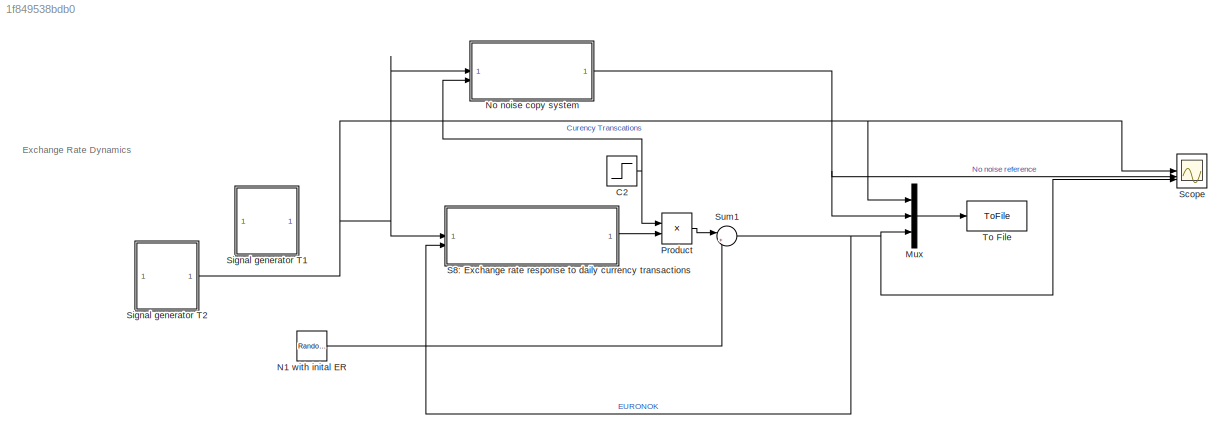
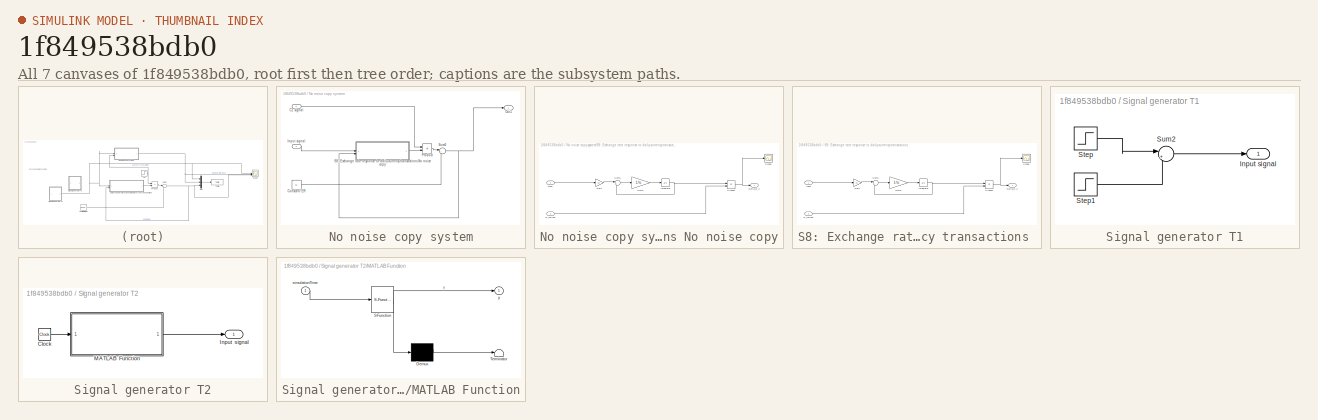
[diagram: thumbnail index - all 7 canvases of the model, root first then tree order]
MODEL slx_1f849538bdb0
KIND model
CONFIG AbsTol = auto
CONFIG EnableMultiTasking = off
CONFIG FixedStep = auto
CONFIG MaxStep = auto
CONFIG MinStep = auto
CONFIG RelTol = 1e-3
CONFIG SampleTimeConstraint = Unconstrained
CONFIG SolverName = VariableStepAuto
CONFIG StartTime = 0.0
CONFIG StopTime = 1.04
BLOCK [Step] C2
  After = 0
  Before = 1
  SampleTime = 0
  Time = 0.38
BLOCK [Mux] Mux
  DisplayOption = bar
  Inputs = 3
BLOCK [RandomNumber] N1 with inital ER
  Mean = 12
  SampleTime = 0.00142857
  Seed = 23341
  Variance = 0.00001259
BLOCK [SubSystem] No noise copy system
BLOCK [Inport] No noise copy system/C2 signal
  Port = 2
BLOCK [Constant] No noise copy system/Constant ER
  Value = 12
BLOCK [Inport] No noise copy system/Input signal
BLOCK [Outport] No noise copy system/Out1
BLOCK [Product] No noise copy system/Product
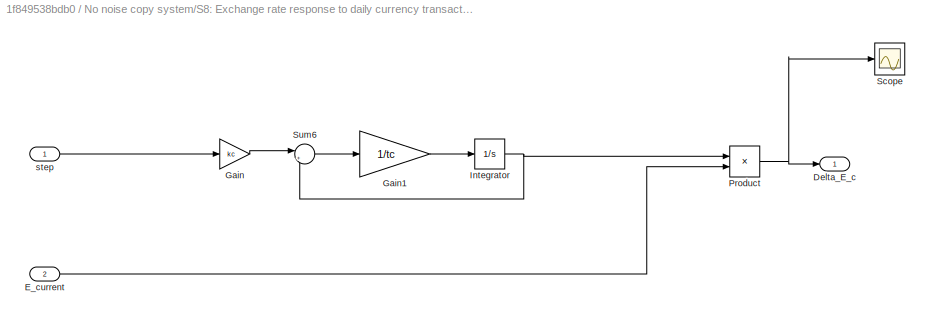
BLOCK [SubSystem] No noise copy system/S8: Exchange rate response to daily currency transactions No noise copy
BLOCK [Outport] No noise copy system/S8: Exchange rate response to daily currency transactions No noise copy/Delta_E_c
BLOCK [Inport] No noise copy system/S8: Exchange rate response to daily currency transactions No noise copy/E_current
  Port = 2
BLOCK [Gain] No noise copy system/S8: Exchange rate response to daily currency transactions No noise copy/Gain
  Gain = kc
BLOCK [Gain] No noise copy system/S8: Exchange rate response to daily currency transactions No noise copy/Gain1
  Gain = 1/tc
BLOCK [Integrator] No noise copy system/S8: Exchange rate response to daily currency transactions No noise copy/Integrator
BLOCK [Product] No noise copy system/S8: Exchange rate response to daily currency transactions No noise copy/Product
BLOCK [Scope] No noise copy system/S8: Exchange rate response to daily currency transactions No noise copy/Scope
  Floating = off
  NumInputPorts = 1
  ScopeSpecificationString = Simulink.scopes.TimeScopeBlockCfg('CurrentConfiguration', extmgr.ConfigurationSet(extmgr.Configuration('Core','General UI',true),extmgr.Configuration('Core','Source UI',true),extmgr.Configuration('Sources','WiredSimulink',true,'DataLoggingVariableName','ScopeData3'),extmgr.Configuration('Visuals','Time Domain',true,'SerializedDisplays',{struct('MinYLimReal','-0.00181','MaxYLimReal','0.01628','YLab...<+1366ch>
BLOCK [Sum] No noise copy system/S8: Exchange rate response to daily currency transactions No noise copy/Sum6
  Inputs = |+-
BLOCK [Inport] No noise copy system/S8: Exchange rate response to daily currency transactions No noise copy/step
BLOCK [Sum] No noise copy system/Sum3
  Inputs = |++
BLOCK [Product] Product
BLOCK [SubSystem] S8: Exchange rate response to daily currency transactions 
BLOCK [Outport] S8: Exchange rate response to daily currency transactions /Delta_E_c
BLOCK [Inport] S8: Exchange rate response to daily currency transactions /E_current
  Port = 2
BLOCK [Gain] S8: Exchange rate response to daily currency transactions /Gain
  Gain = kc
BLOCK [Gain] S8: Exchange rate response to daily currency transactions /Gain1
  Gain = 1/tc
BLOCK [Integrator] S8: Exchange rate response to daily currency transactions /Integrator
BLOCK [Product] S8: Exchange rate response to daily currency transactions /Product
BLOCK [Scope] S8: Exchange rate response to daily currency transactions /Scope
  Floating = off
  NumInputPorts = 1
  ScopeSpecificationString = Simulink.scopes.TimeScopeBlockCfg('CurrentConfiguration', extmgr.ConfigurationSet(extmgr.Configuration('Core','General UI',true),extmgr.Configuration('Core','Source UI',true),extmgr.Configuration('Sources','WiredSimulink',true,'DataLoggingVariableName','ScopeData3'),extmgr.Configuration('Visuals','Time Domain',true,'SerializedDisplays',{struct('MinYLimReal','-0.00097','MaxYLimReal','0.00543','YLab...<+1385ch>
BLOCK [Sum] S8: Exchange rate response to daily currency transactions /Sum6
  Inputs = |+-
BLOCK [Inport] S8: Exchange rate response to daily currency transactions /input
BLOCK [Scope] Scope
  Floating = off
  NumInputPorts = 3
  ScopeSpecificationString = Simulink.scopes.TimeScopeBlockCfg('CurrentConfiguration', extmgr.ConfigurationSet(extmgr.Configuration('Core','General UI',true),extmgr.Configuration('Core','Source UI',true),extmgr.Configuration('Sources','WiredSimulink',true),extmgr.Configuration('Visuals','Time Domain',true,'SerializedDisplays',{struct('MinYLimReal','-774.31641','MaxYLimReal','4433.30078','YLabelReal','','MinYLimMag',' 0.00000'...<+2815ch>
BLOCK [SubSystem] Signal generator T1
BLOCK [Outport] Signal generator T1/Input signal
BLOCK [Step] Signal generator T1/Step
  After = 500
  SampleTime = 0
  Time = 0.1
BLOCK [Step] Signal generator T1/Step1
  After = -500
  SampleTime = 0
  Time = 0.11
BLOCK [Sum] Signal generator T1/Sum2
  Inputs = |++
BLOCK [SubSystem] Signal generator T2
BLOCK [Clock] Signal generator T2/Clock
BLOCK [Outport] Signal generator T2/Input signal
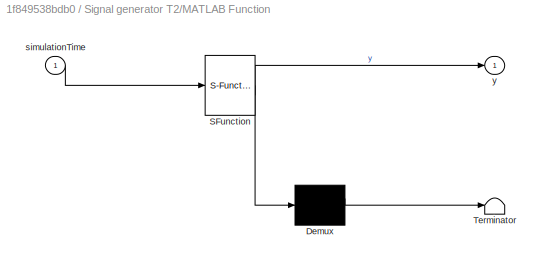
BLOCK [SubSystem] Signal generator T2/MATLAB Function
  ErrorFcn = Stateflow.Translate.translate
  PermitHierarchicalResolution = ExplicitOnly
  SFBlockType = MATLAB Function
  SystemSampleTime = 0.0001
  TreatAsAtomicUnit = on
BLOCK [Demux] Signal generator T2/MATLAB Function/ Demux 
  Outputs = 1
BLOCK [S-Function] Signal generator T2/MATLAB Function/ SFunction 
  EnableBusSupport = on
  FunctionName = sf_sfun
  PortCounts = [1 2]
  SFcnIsStateOwnerBlock = off
  SFunctionDeploymentMode = off
  Tag = Stateflow S-Function 2
BLOCK [Terminator] Signal generator T2/MATLAB Function/ Terminator 
BLOCK [Inport] Signal generator T2/MATLAB Function/simulationTime
BLOCK [Outport] Signal generator T2/MATLAB Function/y
BLOCK [Sum] Sum1
  Inputs = |++
BLOCK [ToFile] To File
  Filename = c2.mat
  MatrixName = c2
  SampleTime = 0.0001
ANNOTATION (root): Exchange Rate Dynamics
NET C2:1 -> No noise copy system:2, Product:1
LINE Mux:1 -> To File:1
LINE N1 with inital ER:1 -> Sum1:2
LINE No noise copy system/C2 signal:1 -> No noise copy system/Product:1
LINE No noise copy system/Constant ER:1 -> No noise copy system/Sum3:2
LINE No noise copy system/Input signal:1 -> No noise copy system/S8: Exchange rate response to daily currency transactions No noise copy:1
LINE No noise copy system/Product:1 -> No noise copy system/Sum3:1
LINE No noise copy system/S8: Exchange rate response to daily currency transactions No noise copy/E_current:1 -> No noise copy system/S8: Exchange rate response to daily currency transactions No noise copy/Product:2
LINE No noise copy system/S8: Exchange rate response to daily currency transactions No noise copy/Gain1:1 -> No noise copy system/S8: Exchange rate response to daily currency transactions No noise copy/Integrator:1
LINE No noise copy system/S8: Exchange rate response to daily currency transactions No noise copy/Gain:1 -> No noise copy system/S8: Exchange rate response to daily currency transactions No noise copy/Sum6:1
NET No noise copy system/S8: Exchange rate response to daily currency transactions No noise copy/Integrator:1 -> No noise copy system/S8: Exchange rate response to daily currency transactions No noise copy/Product:1, No noise copy system/S8: Exchange rate response to daily currency transactions No noise copy/Sum6:2
NET No noise copy system/S8: Exchange rate response to daily currency transactions No noise copy/Product:1 -> No noise copy system/S8: Exchange rate response to daily currency transactions No noise copy/Delta_E_c:1, No noise copy system/S8: Exchange rate response to daily currency transactions No noise copy/Scope:1
LINE No noise copy system/S8: Exchange rate response to daily currency transactions No noise copy/Sum6:1 -> No noise copy system/S8: Exchange rate response to daily currency transactions No noise copy/Gain1:1
LINE No noise copy system/S8: Exchange rate response to daily currency transactions No noise copy/step:1 -> No noise copy system/S8: Exchange rate response to daily currency transactions No noise copy/Gain:1
LINE No noise copy system/S8: Exchange rate response to daily currency transactions No noise copy:1 -> No noise copy system/Product:2
NET No noise copy system/Sum3:1 -> No noise copy system/Out1:1, No noise copy system/S8: Exchange rate response to daily currency transactions No noise copy:2
NET No noise copy system:1 -> Mux:2, Scope:2
LINE Product:1 -> Sum1:1
LINE S8: Exchange rate response to daily currency transactions /E_current:1 -> S8: Exchange rate response to daily currency transactions /Product:2
LINE S8: Exchange rate response to daily currency transactions /Gain1:1 -> S8: Exchange rate response to daily currency transactions /Integrator:1
LINE S8: Exchange rate response to daily currency transactions /Gain:1 -> S8: Exchange rate response to daily currency transactions /Sum6:1
NET S8: Exchange rate response to daily currency transactions /Integrator:1 -> S8: Exchange rate response to daily currency transactions /Product:1, S8: Exchange rate response to daily currency transactions /Sum6:2
NET S8: Exchange rate response to daily currency transactions /Product:1 -> S8: Exchange rate response to daily currency transactions /Delta_E_c:1, S8: Exchange rate response to daily currency transactions /Scope:1
LINE S8: Exchange rate response to daily currency transactions /Sum6:1 -> S8: Exchange rate response to daily currency transactions /Gain1:1
LINE S8: Exchange rate response to daily currency transactions /input:1 -> S8: Exchange rate response to daily currency transactions /Gain:1
LINE S8: Exchange rate response to daily currency transactions :1 -> Product:2
LINE Signal generator T1/Step1:1 -> Signal generator T1/Sum2:2
LINE Signal generator T1/Step:1 -> Signal generator T1/Sum2:1
LINE Signal generator T1/Sum2:1 -> Signal generator T1/Input signal:1
LINE Signal generator T2/Clock:1 -> Signal generator T2/MATLAB Function:1
LINE Signal generator T2/MATLAB Function:1 -> Signal generator T2/Input signal:1
NET Signal generator T2:1 -> Mux:1, No noise copy system:1, S8: Exchange rate response to daily currency transactions :1, Scope:1
NET Sum1:1 -> Mux:3, S8: Exchange rate response to daily currency transactions :2, Scope:3
note: NET lines group one-source signal fan-out (src -> all destinations, sorted); 1:1 wires keep LINE
CHART Signal generator T2/MATLAB Function states=1 transitions=1
  STATE_LABEL 'eML_blk_kernel()'
  STATE_LABEL 'SCRIPT:\nfunction y = historicTransactions(simulationTime)\n\npersistent values;\npersistent currentIndex;\npersistent lastSimulationTime;\n\n% Define the values if not already defined\nif isempty(values)\n    values = [-250, 0, 0, 2000, 2000, 1500, 1500, 1500, 3500, 4300, 3700, 1900];\nend\n\n% Initialize currentIndex if not already initialized\nif isempty(currentIndex)\n    currentIndex = 1;\nend\n\n% Initialize...<+471ch>'
CHART  states=0 transitions=0
